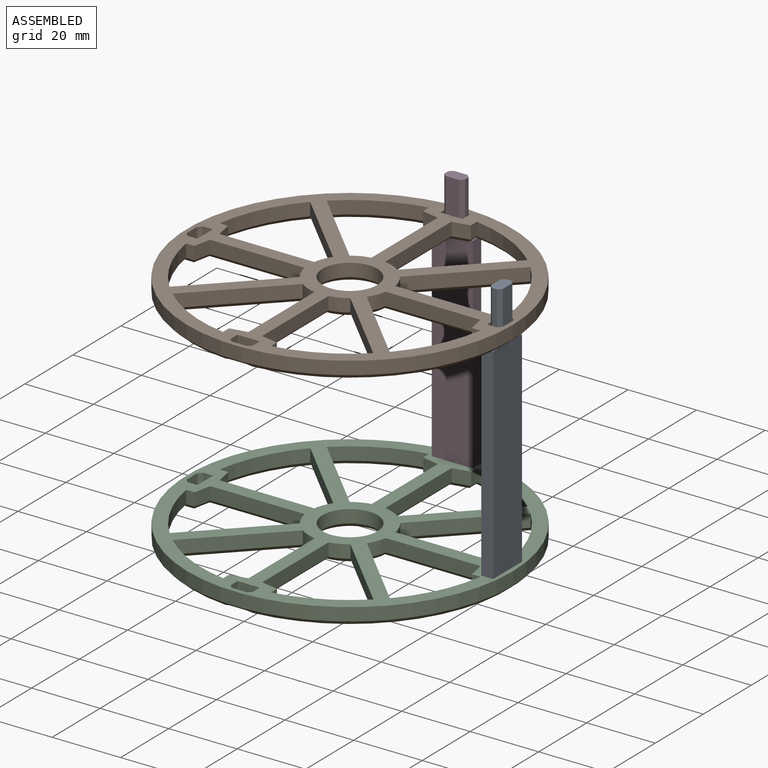
[diagram: assembled view]
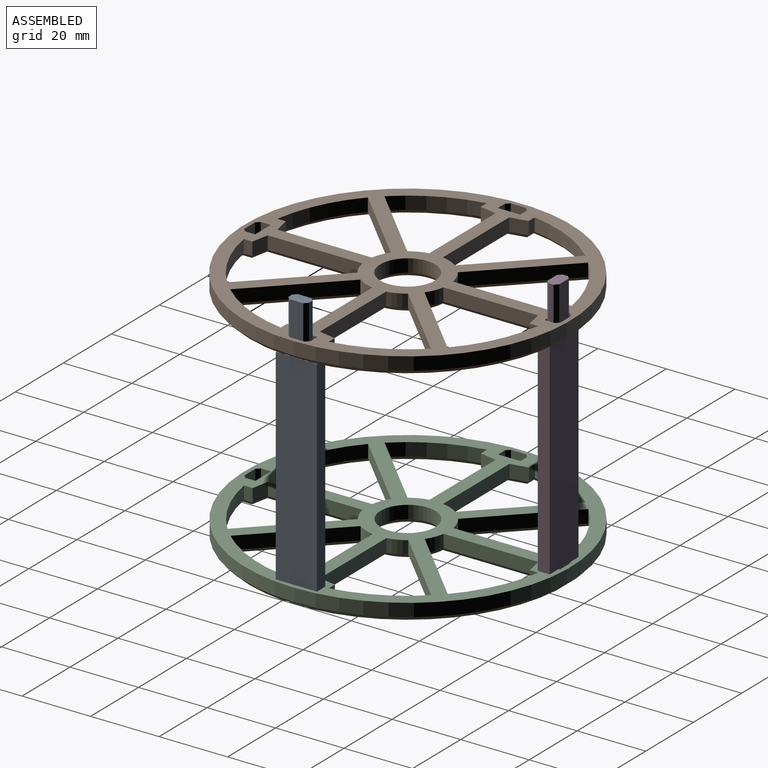
[diagram: assembled view, second angle]
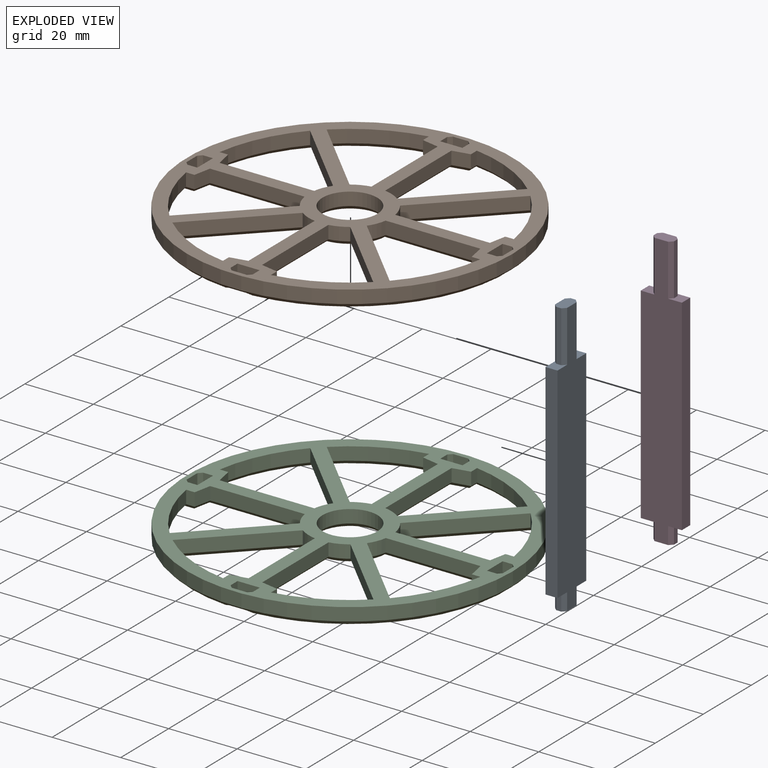
[diagram: exploded view]
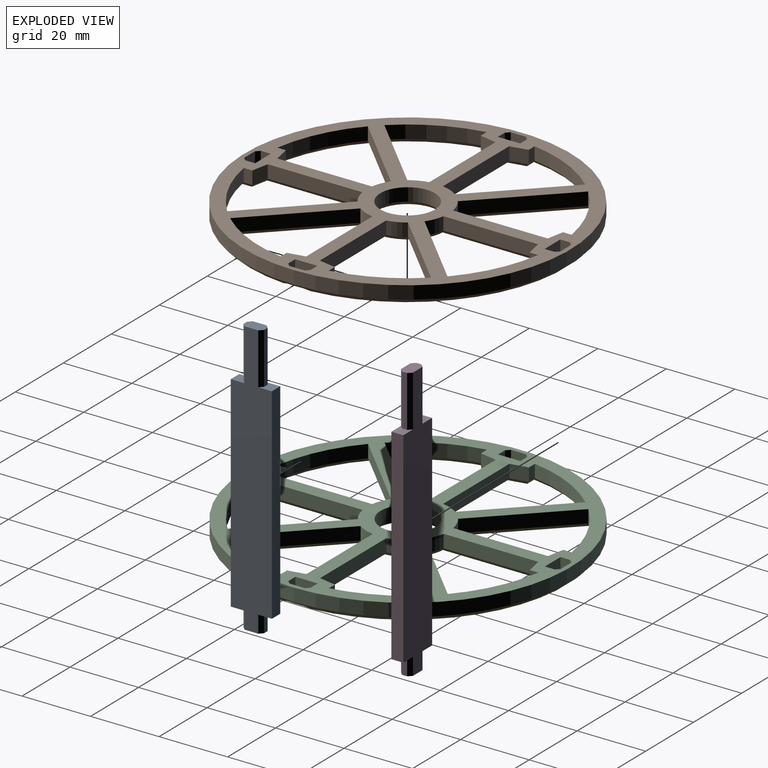
[diagram: exploded view, second angle]
ASSEMBLY  parts=4 mates=8
PART A: 22 faces, bbox 80x12x3.5 mm
  f0: plane 5x1.5mm, normal (0,1,0), area 7.5mm2, adj f1,f11,f18,f19
  f1: plane 6x3.5mm, normal (-1,0,0), area 19mm2, adj f0,f2,f12,f13,f18,f19,f20,f21
  f2: plane 5x1.5mm, normal (0,-1,0), area 7.5mm2, adj f1,f3,f20,f21
  f3: plane 4x3.5mm, normal (-1,0,0), area 11.5mm2, adj f2,f4,f12,f13,f20,f21
  f4: plane 60x3.5mm, normal (0,-1,0), area 210mm2, adj f3,f5,f12,f13
  f5: plane 4x3.5mm, normal (1,0,0), area 11.5mm2, adj f4,f6,f12,f13,f15,f16
  f6: plane 15x1.5mm, normal (0,-1,0), area 22.5mm2, adj f5,f7,f15,f16
  f7: plane 6x3.5mm, normal (1,0,0), area 19mm2, adj f6,f8,f12,f13,f14,f15,f16,f17
  f8: plane 15x1.5mm, normal (0,1,0), area 22.5mm2, adj f7,f9,f14,f17
  f9: plane 4x3.5mm, normal (1,0,0), area 11.5mm2, adj f8,f10,f12,f13,f14,f17
  f10: plane 60x3.5mm, normal (0,1,0), area 210mm2, adj f9,f11,f12,f13
  f11: plane 4x3.5mm, normal (-1,0,0), area 11.5mm2, adj f0,f10,f12,f13,f18,f19
  f12: plane 80x12mm, normal (0,0,1), area 800mm2, adj f1,f3,f4,f5,f7,f9,f10,f11
  f13: plane 80x12mm, normal (0,0,-1), area 800mm2, adj f1,f3,f4,f5,f7,f9,f10,f11
  f14: plane 15x1mm, normal (0,0.71,0.71), area 21.2mm2, adj f7,f8,f9,f12
  f15: plane 15x1mm, normal (0,-0.71,0.71), area 21.2mm2, adj f5,f6,f7,f12
  f16: plane 15x1mm, normal (0,-0.71,-0.71), area 21.2mm2, adj f5,f6,f7,f13
  f17: plane 15x1mm, normal (0,0.71,-0.71), area 21.2mm2, adj f7,f8,f9,f13
  f18: plane 5x1mm, normal (0,0.71,0.71), area 7.1mm2, adj f0,f1,f11,f12
  f19: plane 5x1mm, normal (0,0.71,-0.71), area 7.1mm2, adj f0,f1,f11,f13
  f20: plane 5x1mm, normal (0,-0.71,-0.71), area 7.1mm2, adj f1,f2,f3,f13
  f21: plane 5x1mm, normal (0,-0.71,0.71), area 7.1mm2, adj f1,f2,f3,f12
PART B: 150 faces, bbox 95x95x5 mm
  f0: plane 95x95mm, normal (0,0,1), area 2438.5mm2, adj f2,f3,f4,f5,f6,f7,f8,f9
  f1: plane 92.26x92.26mm, normal (0,0,-1), area 953.5mm2, adj f76,f77,f78,f79,f80,f81,f82,f83
  f2: plane 27.62x3.8mm, normal (1,0,0), area 105mm2, adj f0,f23,f51,f141
  f3: cylinder r=43.5mm len=22.31mm, axis (0,0,-1), area 95.5mm2, adj f0,f24,f50,f128
  f4: plane 27.62x3.8mm, normal (-1,0,0), area 105mm2, adj f0,f22,f49,f126
  f5: plane 27.62x3.8mm, normal (0,-1,0), area 105mm2, adj f0,f27,f47,f96
  f6: cylinder r=43.5mm len=22.31mm, axis (0,0,-1), area 95.5mm2, adj f0,f28,f46,f85
  f7: plane 27.62x3.8mm, normal (0,1,0), area 105mm2, adj f0,f26,f45,f95
  f8: plane 27.62x3.8mm, normal (-1,0,0), area 105mm2, adj f0,f31,f43,f100
  f9: cylinder r=43.5mm len=22.31mm, axis (0,0,-1), area 95.5mm2, adj f0,f32,f42,f89
  f10: plane 27.62x3.8mm, normal (1,0,0), area 105mm2, adj f0,f30,f41,f99
  f11: plane 27.62x3.8mm, normal (0,1,0), area 105mm2, adj f0,f19,f39,f104
  f12: cylinder r=43.5mm len=22.31mm, axis (0,0,-1), area 95.5mm2, adj f0,f20,f38,f93
  f13: plane 27.62x3.8mm, normal (0,-1,0), area 105mm2, adj f0,f34,f37,f103
  f14: cylinder r=43.5mm len=22.31mm, axis (0,0,-1), area 95.5mm2, adj f0,f21,f48,f116
  f15: cylinder r=43.5mm len=22.31mm, axis (0,0,-1), area 95.5mm2, adj f0,f25,f44,f82
  f16: cylinder r=43.5mm len=22.31mm, axis (0,0,-1), area 95.5mm2, adj f0,f29,f40,f86
  f17: cylinder r=43.5mm len=22.31mm, axis (0,0,-1), area 95.5mm2, adj f0,f33,f36,f90
  f18: cylinder r=47.5mm len=95mm, axis (0,0,-1), area 1134.1mm2, adj f0,f143
  f19: cylinder r=12mm len=4.95mm, axis (0,0,-1), area 20.5mm2, adj f0,f11,f20,f92
  f20: plane 22.36x22.36mm, normal (-0.71,-0.71,0), area 120.2mm2, adj f0,f12,f19,f81
  f21: plane 22.36x22.36mm, normal (0.71,0.71,0), area 120.2mm2, adj f0,f14,f22,f106
  f22: cylinder r=12mm len=4.95mm, axis (0,0,-1), area 20.5mm2, adj f0,f4,f21,f117
  f23: cylinder r=12mm len=4.95mm, axis (0,0,-1), area 20.5mm2, adj f0,f2,f24,f127
  f24: plane 22.36x22.36mm, normal (-0.71,0.71,0), area 120.2mm2, adj f0,f3,f23,f118
  f25: plane 22.36x22.36mm, normal (0.71,-0.71,0), area 120.2mm2, adj f0,f15,f26,f76
  f26: cylinder r=12mm len=4.95mm, axis (0,0,-1), area 20.5mm2, adj f0,f7,f25,f83
  f27: cylinder r=12mm len=4.95mm, axis (0,0,-1), area 20.5mm2, adj f0,f5,f28,f84
  f28: plane 22.36x22.36mm, normal (0.71,0.71,0), area 120.2mm2, adj f0,f6,f27,f77
  f29: plane 22.36x22.36mm, normal (-0.71,-0.71,0), area 120.2mm2, adj f0,f16,f30,f78
  f30: cylinder r=12mm len=4.95mm, axis (0,0,-1), area 20.5mm2, adj f0,f10,f29,f87
  f31: cylinder r=12mm len=4.95mm, axis (0,0,-1), area 20.5mm2, adj f0,f8,f32,f88
  f32: plane 22.36x22.36mm, normal (0.71,-0.71,0), area 120.2mm2, adj f0,f9,f31,f79
  f33: plane 22.36x22.36mm, normal (-0.71,0.71,0), area 120.2mm2, adj f0,f17,f34,f80
  f34: cylinder r=12mm len=4.95mm, axis (0,0,-1), area 20.5mm2, adj f0,f13,f33,f91
  f35: cylinder r=8mm len=16mm, axis (0,0,-1), area 191mm2, adj f0,f149
  f36: plane 3.8x2.49mm, normal (0,-1,0), area 9.5mm2, adj f0,f17,f37,f102
  f37: plane 5x3.8mm, normal (0.98,-0.19,0), area 19.4mm2, adj f0,f13,f36,f113
  f38: plane 3.8x2.49mm, normal (0,1,0), area 9.5mm2, adj f0,f12,f39,f105
  f39: plane 5x3.8mm, normal (0.98,0.19,0), area 19.4mm2, adj f0,f11,f38,f115
  f40: plane 3.8x2.49mm, normal (1,0,0), area 9.5mm2, adj f0,f16,f41,f98
  f41: plane 5x3.8mm, normal (0.19,0.98,0), area 19.4mm2, adj f0,f10,f40,f110
  f42: plane 3.8x2.49mm, normal (-1,0,0), area 9.5mm2, adj f0,f9,f43,f101
  f43: plane 5x3.8mm, normal (-0.19,0.98,0), area 19.4mm2, adj f0,f8,f42,f112
  f44: plane 3.8x2.49mm, normal (0,1,0), area 9.5mm2, adj f0,f15,f45,f94
  f45: plane 5x3.8mm, normal (-0.98,0.19,0), area 19.4mm2, adj f0,f7,f44,f107
  f46: plane 3.8x2.49mm, normal (0,-1,0), area 9.5mm2, adj f0,f6,f47,f97
  f47: plane 5x3.8mm, normal (-0.98,-0.19,0), area 19.4mm2, adj f0,f5,f46,f109
  f48: plane 3.8x2.49mm, normal (-1,0,0), area 9.5mm2, adj f0,f14,f49,f125
  f49: plane 5x3.8mm, normal (-0.19,-0.98,0), area 19.4mm2, adj f0,f4,f48,f140
  f50: plane 3.8x2.49mm, normal (1,0,0), area 9.5mm2, adj f0,f3,f51,f142
  f51: plane 5x3.8mm, normal (0.19,-0.98,0), area 19.4mm2, adj f0,f2,f50,f146
  f52: plane 6.5x3.8mm, normal (0,1,0), area 24.7mm2, adj f0,f53,f55,f145
  f53: plane 3.8x2.9mm, normal (-1,0,0), area 11mm2, adj f0,f52,f73,f148
  f54: plane 4.5x3.8mm, normal (0,-1,0), area 17.1mm2, adj f0,f72,f73,f144
  f55: plane 3.8x2.9mm, normal (1,0,0), area 11mm2, adj f0,f52,f72,f139
  f56: plane 6.5x3.8mm, normal (1,0,0), area 24.7mm2, adj f0,f57,f59,f108
  f57: plane 3.8x2.9mm, normal (0,1,0), area 11mm2, adj f0,f56,f71,f120
  f58: plane 4.5x3.8mm, normal (-1,0,0), area 17.1mm2, adj f0,f70,f71,f130
  f59: plane 3.8x2.9mm, normal (0,-1,0), area 11mm2, adj f0,f56,f70,f119
  f60: plane 6.5x3.8mm, normal (0,-1,0), area 24.7mm2, adj f0,f61,f63,f111
  f61: plane 3.8x2.9mm, normal (1,0,0), area 11mm2, adj f0,f60,f69,f122
  f62: plane 4.5x3.8mm, normal (0,1,0), area 17.1mm2, adj f0,f68,f69,f133
  f63: plane 3.8x2.9mm, normal (-1,0,0), area 11mm2, adj f0,f60,f68,f121
  f64: plane 6.5x3.8mm, normal (-1,0,0), area 24.7mm2, adj f0,f65,f67,f114
  f65: plane 3.8x2.9mm, normal (0,-1,0), area 11mm2, adj f0,f64,f75,f124
  f66: plane 4.5x3.8mm, normal (1,0,0), area 17.1mm2, adj f0,f74,f75,f136
  f67: plane 3.8x2.9mm, normal (0,1,0), area 11mm2, adj f0,f64,f74,f123
  f68: plane 3.8x1mm, normal (-0.71,0.71,0), area 5.4mm2, adj f0,f62,f63,f132
  f69: plane 3.8x1mm, normal (0.71,0.71,0), area 5.4mm2, adj f0,f61,f62,f134
  f70: plane 3.8x1mm, normal (-0.71,-0.71,0), area 5.4mm2, adj f0,f58,f59,f129
  f71: plane 3.8x1mm, normal (-0.71,0.71,0), area 5.4mm2, adj f0,f57,f58,f131
  f72: plane 3.8x1mm, normal (0.71,-0.71,0), area 5.4mm2, adj f0,f54,f55,f138
  f73: plane 3.8x1mm, normal (-0.71,-0.71,0), area 5.4mm2, adj f0,f53,f54,f147
  f74: plane 3.8x1mm, normal (0.71,0.71,0), area 5.4mm2, adj f0,f66,f67,f135
  f75: plane 3.8x1mm, normal (0.71,-0.71,0), area 5.4mm2, adj f0,f65,f66,f137
  f76: plane 24.1x24mm, normal (0.5,-0.5,-0.71), area 55.6mm2, adj f1,f25,f82,f83
  f77: plane 24.1x24mm, normal (0.5,0.5,-0.71), area 55.6mm2, adj f1,f28,f84,f85
  f78: plane 24.1x24mm, normal (-0.5,-0.5,-0.71), area 55.6mm2, adj f1,f29,f86,f87
  f79: plane 24.1x24mm, normal (0.5,-0.5,-0.71), area 55.6mm2, adj f1,f32,f88,f89
  f80: plane 24.1x24mm, normal (-0.5,0.5,-0.71), area 55.6mm2, adj f1,f33,f90,f91
  f81: plane 24.1x24mm, normal (-0.5,-0.5,-0.71), area 55.6mm2, adj f1,f20,f92,f93
  f82: cone r=44.7mm half-angle=45deg, axis (0,0,-1), area 45.5mm2, adj f1,f15,f76,f94
  f83: cone r=12mm half-angle=45deg, axis (0,0,1), area 10.4mm2, adj f1,f26,f76,f95
  f84: cone r=12mm half-angle=45deg, axis (0,0,1), area 10.4mm2, adj f1,f27,f77,f96
  f85: cone r=44.7mm half-angle=45deg, axis (0,0,-1), area 45.5mm2, adj f1,f6,f77,f97
  f86: cone r=44.7mm half-angle=45deg, axis (0,0,-1), area 45.5mm2, adj f1,f16,f78,f98
  f87: cone r=12mm half-angle=45deg, axis (0,0,1), area 10.4mm2, adj f1,f30,f78,f99
  f88: cone r=12mm half-angle=45deg, axis (0,0,1), area 10.4mm2, adj f1,f31,f79,f100
  f89: cone r=44.7mm half-angle=45deg, axis (0,0,-1), area 45.5mm2, adj f1,f9,f79,f101
  f90: cone r=44.7mm half-angle=45deg, axis (0,0,-1), area 45.5mm2, adj f1,f17,f80,f102
  f91: cone r=12mm half-angle=45deg, axis (0,0,1), area 10.4mm2, adj f1,f34,f80,f103
  f92: cone r=12mm half-angle=45deg, axis (0,0,1), area 10.4mm2, adj f1,f19,f81,f104
  f93: cone r=44.7mm half-angle=45deg, axis (0,0,-1), area 45.5mm2, adj f1,f12,f81,f105
  f94: plane 3.9x1.22mm, normal (0,0.71,-0.71), area 4.6mm2, adj f1,f44,f82,f107
  f95: plane 29.67x1.2mm, normal (0,0.71,-0.71), area 48.6mm2, adj f1,f7,f83,f107
  f96: plane 29.67x1.2mm, normal (0,-0.71,-0.71), area 48.6mm2, adj f1,f5,f84,f109
  f97: plane 3.9x1.22mm, normal (0,-0.71,-0.71), area 4.6mm2, adj f1,f46,f85,f109
  f98: plane 3.9x1.22mm, normal (0.71,0,-0.71), area 4.6mm2, adj f1,f40,f86,f110
  f99: plane 29.67x1.2mm, normal (0.71,0,-0.71), area 48.6mm2, adj f1,f10,f87,f110
  f100: plane 29.67x1.2mm, normal (-0.71,0,-0.71), area 48.6mm2, adj f1,f8,f88,f112
  f101: plane 3.9x1.22mm, normal (-0.71,0,-0.71), area 4.6mm2, adj f1,f42,f89,f112
  f102: plane 3.9x1.22mm, normal (0,-0.71,-0.71), area 4.6mm2, adj f1,f36,f90,f113
  f103: plane 29.67x1.2mm, normal (0,-0.71,-0.71), area 48.6mm2, adj f1,f13,f91,f113
  f104: plane 29.67x1.2mm, normal (0,0.71,-0.71), area 48.6mm2, adj f1,f11,f92,f115
  f105: plane 3.9x1.22mm, normal (0,0.71,-0.71), area 4.6mm2, adj f1,f38,f93,f115
  f106: plane 24.1x24mm, normal (0.5,0.5,-0.71), area 55.6mm2, adj f1,f21,f116,f117
  f107: plane 6.2x1.97mm, normal (-0.69,0.14,-0.71), area 8.6mm2, adj f1,f45,f94,f95,f108,f119
  f108: plane 8.8x1.2mm, normal (0.71,0,-0.71), area 13mm2, adj f1,f56,f107,f109,f119,f120
  f109: plane 6.2x1.97mm, normal (-0.69,-0.14,-0.71), area 8.6mm2, adj f1,f47,f96,f97,f108,f120
  f110: plane 6.2x1.97mm, normal (0.14,0.69,-0.71), area 8.6mm2, adj f1,f41,f98,f99,f111,f121
  f111: plane 8.8x1.2mm, normal (0,-0.71,-0.71), area 13mm2, adj f1,f60,f110,f112,f121,f122
  f112: plane 6.2x1.97mm, normal (-0.14,0.69,-0.71), area 8.6mm2, adj f1,f43,f100,f101,f111,f122
  f113: plane 6.2x1.97mm, normal (0.69,-0.14,-0.71), area 8.6mm2, adj f1,f37,f102,f103,f114,f123
  f114: plane 8.8x1.2mm, normal (-0.71,0,-0.71), area 13mm2, adj f1,f64,f113,f115,f123,f124
  f115: plane 6.2x1.97mm, normal (0.69,0.14,-0.71), area 8.6mm2, adj f1,f39,f104,f105,f114,f124
  f116: cone r=44.7mm half-angle=45deg, axis (0,0,-1), area 45.5mm2, adj f1,f14,f106,f125
  f117: cone r=12mm half-angle=45deg, axis (0,0,1), area 10.4mm2, adj f1,f22,f106,f126
  f118: plane 24.1x24mm, normal (-0.5,0.5,-0.71), area 55.6mm2, adj f1,f24,f127,f128
  f119: plane 4.55x1.2mm, normal (0,-0.71,-0.71), area 6.4mm2, adj f1,f59,f107,f108,f129
  f120: plane 4.55x1.2mm, normal (0,0.71,-0.71), area 6.4mm2, adj f1,f57,f108,f109,f131
  f121: plane 4.55x1.2mm, normal (-0.71,0,-0.71), area 6.4mm2, adj f1,f63,f110,f111,f132
  f122: plane 4.55x1.2mm, normal (0.71,0,-0.71), area 6.4mm2, adj f1,f61,f111,f112,f134
  f123: plane 4.55x1.2mm, normal (0,0.71,-0.71), area 6.4mm2, adj f1,f67,f113,f114,f135
  f124: plane 4.55x1.2mm, normal (0,-0.71,-0.71), area 6.4mm2, adj f1,f65,f114,f115,f137
  f125: plane 3.9x1.22mm, normal (-0.71,0,-0.71), area 4.6mm2, adj f1,f48,f116,f140
  f126: plane 29.67x1.2mm, normal (-0.71,0,-0.71), area 48.6mm2, adj f1,f4,f117,f140
  f127: cone r=12mm half-angle=45deg, axis (0,0,1), area 10.4mm2, adj f1,f23,f118,f141
  f128: cone r=44.7mm half-angle=45deg, axis (0,0,-1), area 45.5mm2, adj f1,f3,f118,f142
  f129: plane 2.21x1.65mm, normal (-0.5,-0.5,-0.71), area 2.6mm2, adj f1,f70,f119,f130,f143
  f130: plane 5.04x0.68mm, normal (-0.71,0,-0.71), area 4.5mm2, adj f58,f129,f131,f143
  f131: plane 2.21x1.65mm, normal (-0.5,0.5,-0.71), area 2.6mm2, adj f1,f71,f120,f130,f143
  f132: plane 2.21x1.65mm, normal (-0.5,0.5,-0.71), area 2.6mm2, adj f1,f68,f121,f133,f143
  f133: plane 5.04x0.68mm, normal (0,0.71,-0.71), area 4.5mm2, adj f62,f132,f134,f143
  f134: plane 2.21x1.65mm, normal (0.5,0.5,-0.71), area 2.6mm2, adj f1,f69,f122,f133,f143
  f135: plane 2.21x1.65mm, normal (0.5,0.5,-0.71), area 2.6mm2, adj f1,f74,f123,f136,f143
  f136: plane 5.04x0.68mm, normal (0.71,0,-0.71), area 4.5mm2, adj f66,f135,f137,f143
  f137: plane 2.21x1.65mm, normal (0.5,-0.5,-0.71), area 2.6mm2, adj f1,f75,f124,f136,f143
  f138: plane 2.21x1.65mm, normal (0.5,-0.5,-0.71), area 2.6mm2, adj f1,f72,f139,f143,f144
  f139: plane 4.55x1.2mm, normal (0.71,0,-0.71), area 6.4mm2, adj f1,f55,f138,f140,f145
  f140: plane 6.2x1.97mm, normal (-0.14,-0.69,-0.71), area 8.6mm2, adj f1,f49,f125,f126,f139,f145
  f141: plane 29.67x1.2mm, normal (0.71,0,-0.71), area 48.6mm2, adj f1,f2,f127,f146
  f142: plane 3.9x1.22mm, normal (0.71,0,-0.71), area 4.6mm2, adj f1,f50,f128,f146
  f143: cone r=47.5mm half-angle=45deg, axis (0,0,1), area 480.2mm2, adj f1,f18,f129,f130,f131,f132,f133,f134
  f144: plane 5.04x0.68mm, normal (0,-0.71,-0.71), area 4.5mm2, adj f54,f138,f143,f147
  f145: plane 8.8x1.2mm, normal (0,0.71,-0.71), area 13mm2, adj f1,f52,f139,f140,f146,f148
  f146: plane 6.2x1.97mm, normal (0.14,-0.69,-0.71), area 8.6mm2, adj f1,f51,f141,f142,f145,f148
  f147: plane 2.21x1.65mm, normal (-0.5,-0.5,-0.71), area 2.6mm2, adj f1,f73,f143,f144,f148
  f148: plane 4.55x1.2mm, normal (-0.71,0,-0.71), area 6.4mm2, adj f1,f53,f145,f146,f147
  f149: cone r=8mm half-angle=45deg, axis (0,0,-1), area 91.7mm2, adj f1,f35
PART C: same geometry as B
PART D: same geometry as A
PLACE A rot(axis=(0.71,0,0.71),180deg) t=(-19.43,-13.93,2.23)mm
PLACE B t=(-62.08,-12.91,7.8)mm
PLACE C t=(-62.08,-12.84,-57.2)mm
PLACE D rot(axis=(0.58,-0.58,0.58),120deg) t=(-62.67,32.91,2.23)mm
MATE planar D.f2 <-> C.f53  axis (1,0,0) through (-58.83,31.16,-54.7)mm
MATE planar B.f1 <-> D.f9  axis (0,0,-1) through (-67.88,31.41,7.8)mm
MATE planar A.f12 <-> C.f58  axis (1,0,0) through (-15.93,-13.09,-20.2)mm
MATE planar D.f6 <-> B.f53  axis (1,0,0) through (-58.83,31.16,15.3)mm
MATE planar A.f0 <-> C.f57  axis (0,-1,0) through (-17.68,-16.09,-54.7)mm
MATE planar A.f11 <-> C.f26  axis (0,0,-1) through (-17.68,-17.43,-52.2)mm
MATE planar D.f12 <-> C.f52  axis (0,-1,0) through (-61.83,29.41,-20.2)mm
MATE planar D.f11 <-> C.f26  axis (0,0,-1) through (-66.17,31.16,-52.2)mm
